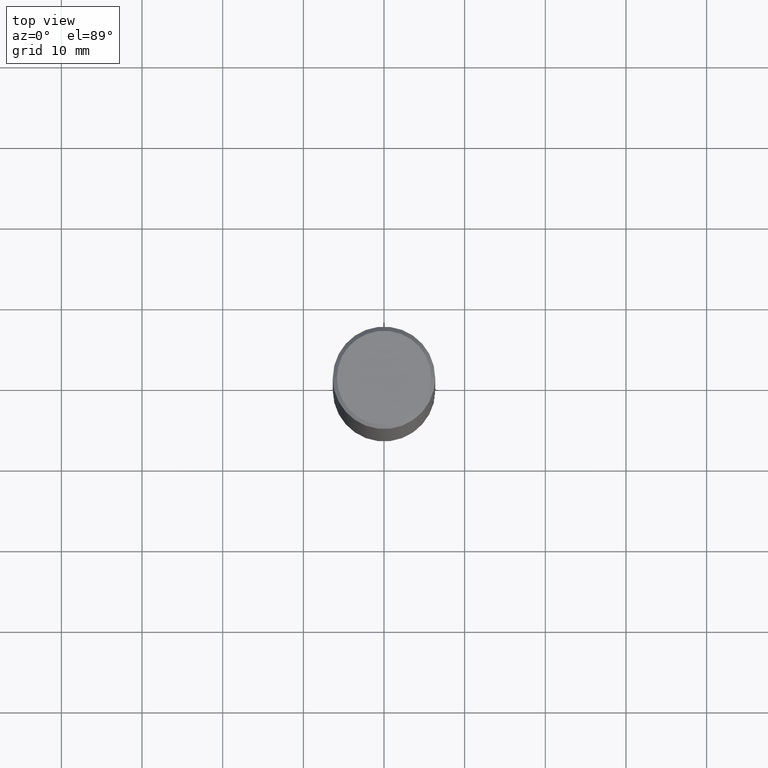
[diagram: clean part render]
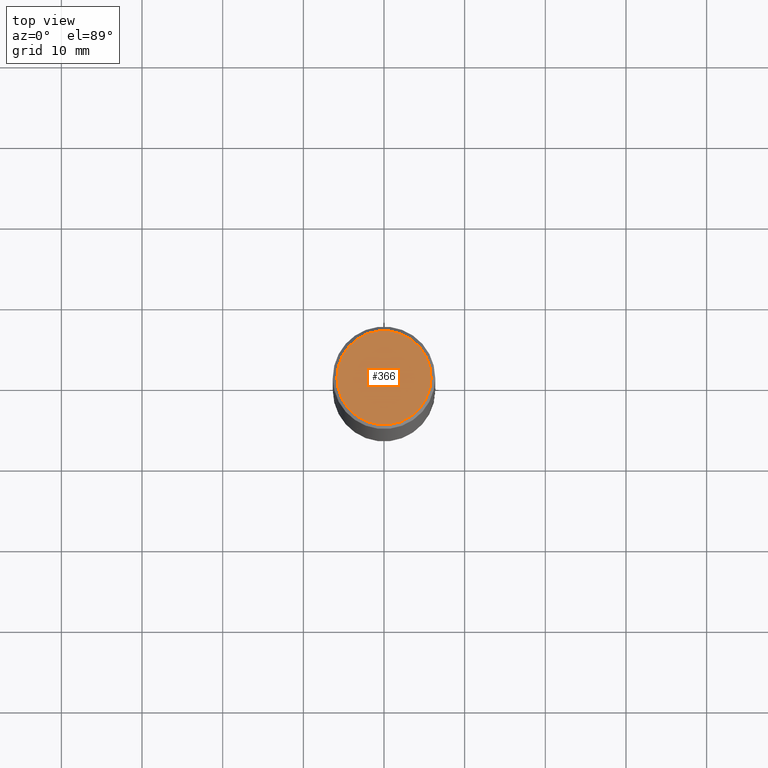
[diagram: same view with one face highlighted and labeled with its STEP entity id]
A machine part, top view. The second image highlights one B-rep face of the part: STEP entity #366.
In plain terms, the highlighted planar face has unit normal (0, -0, -1).
Its self-contained STEP definition (entity closure, byte-faithful):
#5 = DIRECTION ( 'NONE',  ( 2.438088387897960049E-29, -3.491481338843145188E-15, -1.000000000000000000 ) ) ;
#7 = VERTEX_POINT ( 'NONE', #171 ) ;
#33 = AXIS2_PLACEMENT_3D ( 'NONE', #89, #339, #56 ) ;
#34 = DIRECTION ( 'NONE',  ( -1.000000000000000000, 6.982962677686265922E-15, -4.876176775795935793E-29 ) ) ;
#38 = VERTEX_POINT ( 'NONE', #321 ) ;
#46 = DIRECTION ( 'NONE',  ( -2.445468806185136597E-29, 3.491481338843145583E-15, 1.000000000000000000 ) ) ;
#49 = CARTESIAN_POINT ( 'NONE',  ( -1.043851414335219820E-46, 1.490343170380447200E-32, 4.268512490100411279E-18 ) ) ;
#56 = DIRECTION ( 'NONE',  ( 1.000000000000000000, -6.982962677686266711E-15, 4.876225828469314487E-29 ) ) ;
#64 = PLANE ( 'NONE',  #293 ) ;
#89 = CARTESIAN_POINT ( 'NONE',  ( -1.043851414335219820E-46, 1.490343170380447200E-32, 4.268512490100411279E-18 ) ) ;
#124 = CARTESIAN_POINT ( 'NONE',  ( 1.606081415867839292E-15, 0.2299999999999997324, -8.009064516888723911E-16 ) ) ;
#148 = EDGE_CURVE ( 'NONE', #38, #7, #204, .T. ) ;
#150 = FACE_OUTER_BOUND ( 'NONE', #283, .T. ) ;
#156 = AXIS2_PLACEMENT_3D ( 'NONE', #49, #46, #354 ) ;
#171 = CARTESIAN_POINT ( 'NONE',  ( 0.2299999999999997324, -1.681434332853597433E-15, 4.268512490111905999E-18 ) ) ;
#204 = CIRCLE ( 'NONE', #156, 0.2299999999999997324 ) ;
#239 = ORIENTED_EDGE ( 'NONE', *, *, #148, .T. ) ;
#243 = EDGE_CURVE ( 'NONE', #7, #38, #350, .T. ) ;
#283 = EDGE_LOOP ( 'NONE', ( #239, #315 ) ) ;
#293 = AXIS2_PLACEMENT_3D ( 'NONE', #124, #5, #34 ) ;
#315 = ORIENTED_EDGE ( 'NONE', *, *, #243, .T. ) ;
#321 = CARTESIAN_POINT ( 'NONE',  ( -0.2299999999999997324, 1.640996229256270744E-15, 4.268512490089056766E-18 ) ) ;
#339 = DIRECTION ( 'NONE',  ( -2.445468806185136597E-29, 3.491481338843145583E-15, 1.000000000000000000 ) ) ;
#350 = CIRCLE ( 'NONE', #33, 0.2299999999999997324 ) ;
#354 = DIRECTION ( 'NONE',  ( 1.000000000000000000, -6.982962677686266711E-15, 4.876225828469314487E-29 ) ) ;
#366 = ADVANCED_FACE ( 'NONE', ( #150 ), #64, .F. ) ;